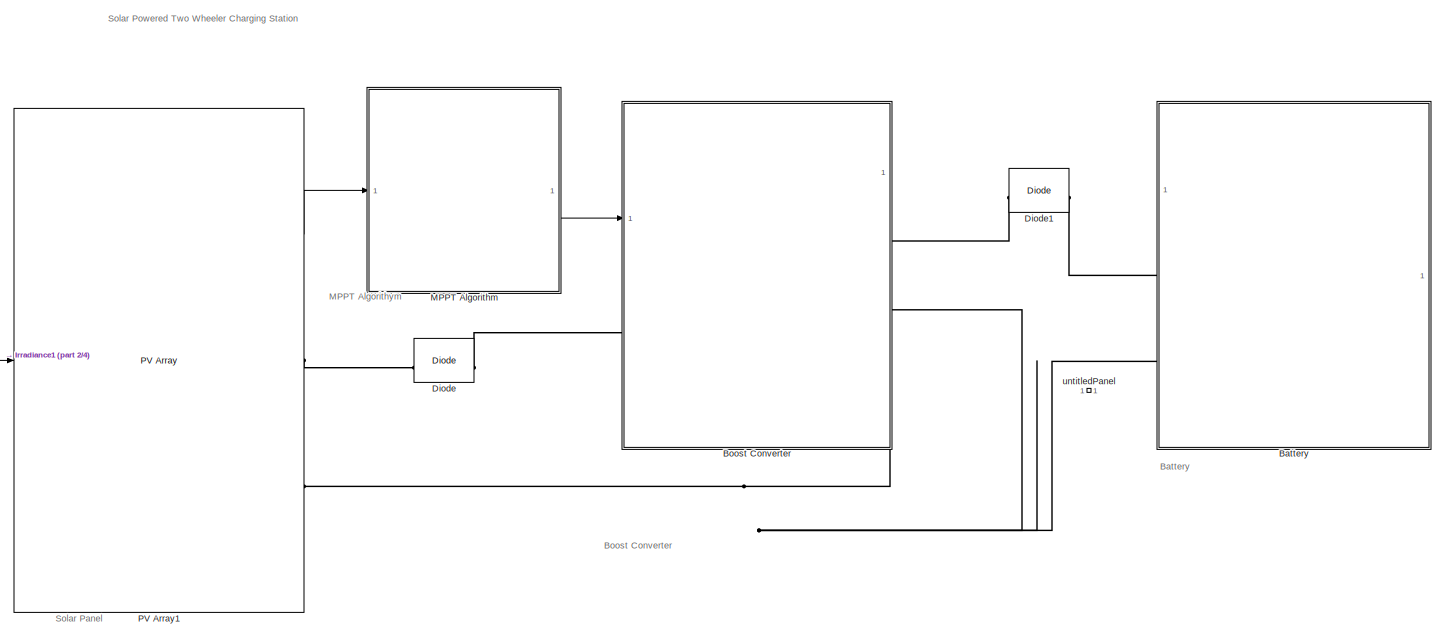
[diagram: root canvas - part 1/4, full width, top band]
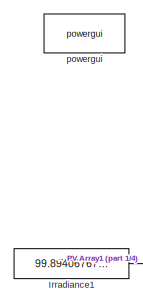
[diagram: root canvas - part 2/4, top left region]
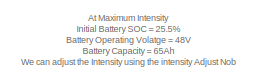
[diagram: root canvas - part 3/4, bottom left region]
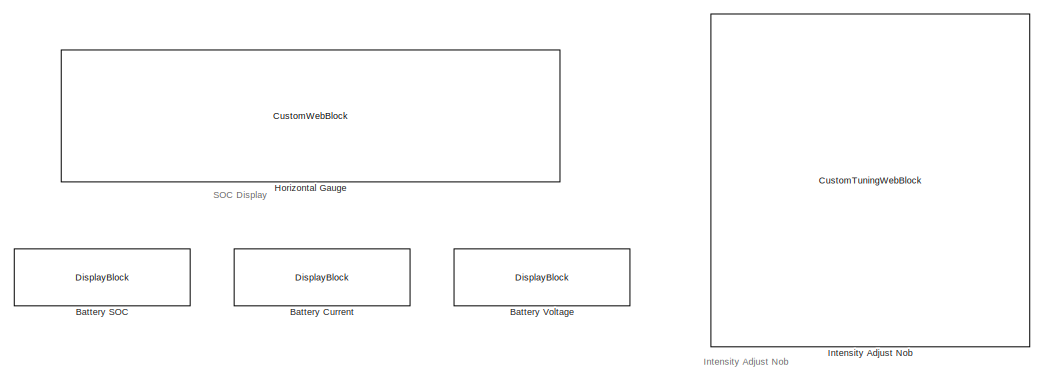
[diagram: root canvas - part 4/4, bottom right region]
MODEL slx_e4b06bc5aaa3
KIND model
CONFIG AbsTol = auto
CONFIG EnableMultiTasking = off
CONFIG FixedStep = auto
CONFIG MaxStep = auto
CONFIG MinStep = auto
CONFIG RelTol = 1e-3
CONFIG SampleTimeConstraint = Unconstrained
CONFIG SolverName = ode23t
CONFIG StartTime = 0.0
CONFIG StopTime = 3600
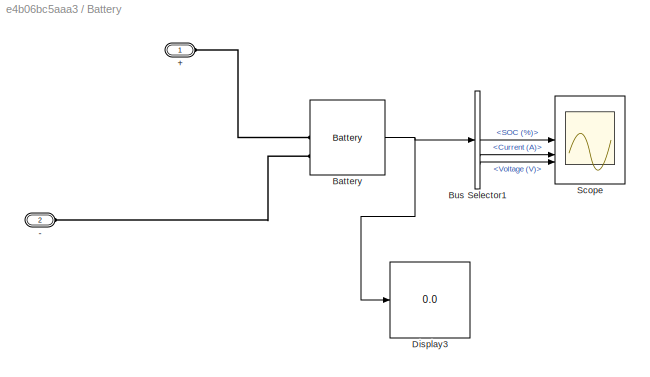
BLOCK [SubSystem] Battery
BLOCK [DisplayBlock] Battery Current
  LabelPosition = Hide
  Transparency = 1
BLOCK [DisplayBlock] Battery SOC
  LabelPosition = Hide
  Transparency = 1
BLOCK [DisplayBlock] Battery Voltage
  LabelPosition = Hide
  Transparency = 1
BLOCK [PMIOPort] Battery/+
  Side = Left
BLOCK [PMIOPort] Battery/-
  Port = 2
  Side = Left
BLOCK [Reference] Battery/Battery  REF=spsBatteryLib/Battery
  LibrarySourceBlock = sps_lib/Sources/Battery
  SourceBlock = spsBatteryLib/Battery
  SourceType = Battery
BLOCK [BusSelector] Battery/Bus Selector1
  OutputSignals = SOC (%),Current (A),Voltage (V)
BLOCK [Display] Battery/Display3
  Decimation = 1
BLOCK [Scope] Battery/Scope
  Floating = off
  NumInputPorts = 3
  ScopeSpecificationString = Simulink.scopes.TimeScopeBlockCfg('CurrentConfiguration', extmgr.ConfigurationSet(extmgr.Configuration('Core','General UI',true),extmgr.Configuration('Core','Source UI',true),extmgr.Configuration('Sources','WiredSimulink',true),extmgr.Configuration('Visuals','Time Domain',true,'SerializedDisplays',{struct('MinYLimReal','24.99661','MaxYLimReal','25.0305','YLabelReal','','MinYLimMag','24.99661','Max...<+2891ch>
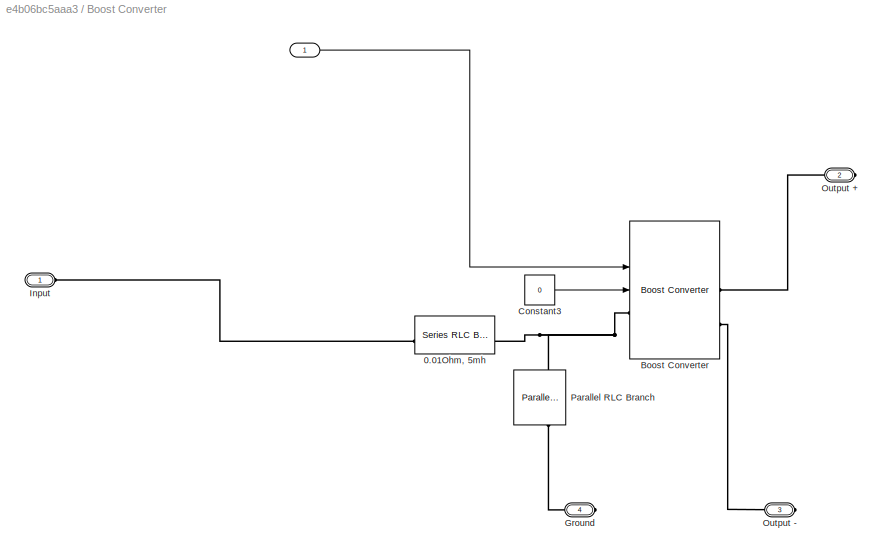
BLOCK [SubSystem] Boost Converter
  PortSchema = {"entries":[{"content":{"sides":[{"content":{"connectorIds":["In1","LConn1"]},"type":"ConnectorPlacement.EquallySpacedRectSide","uuid":"6df60865-aabd-442b-bacd-28d207d40c97"},{"content":{"connectorIds":["RConn1","RConn2"],"side":"RIGHT"},"type":"ConnectorPlacement.EquallySpacedRectSide","uuid":"38fe3c18-4b36-4eab-bb47-575a2be94bce"},{"content":{"side":"TOP"},"type":"ConnectorPlacement.EquallySpace...<+394ch>
BLOCK [Inport] Boost Converter/  
BLOCK [Reference] Boost Converter/0.01Ohm, 5mh  REF=spsSeriesRLCBranchLib/Series RLC Branch
  LibrarySourceBlock = sps_lib/Passives/Series RLC Branch
  SourceBlock = spsSeriesRLCBranchLib/Series RLC Branch
  SourceType = Series RLC Branch
BLOCK [Reference] Boost Converter/Boost Converter  REF=spsBoostConverterLib/Boost Converter
  LibrarySourceBlock = sps_lib/Power Electronics/Boost Converter
  SourceBlock = spsBoostConverterLib/Boost Converter
  SourceType = Boost Converter
BLOCK [Constant] Boost Converter/Constant3
  Value = 0
BLOCK [PMIOPort] Boost Converter/Ground
  Port = 4
  Side = Right
BLOCK [PMIOPort] Boost Converter/Input
  Side = Left
BLOCK [PMIOPort] Boost Converter/Output +
  Port = 2
  Side = Right
BLOCK [PMIOPort] Boost Converter/Output -
  Port = 3
  Side = Right
BLOCK [Reference] Boost Converter/Parallel RLC Branch  REF=spsParallelRLCBranchLib/Parallel RLC Branch
  AttributesFormatString = \n
  LibrarySourceBlock = sps_lib/Passives/Parallel RLC Branch
  NameLocation = left
  SourceBlock = spsParallelRLCBranchLib/Parallel RLC Branch
  SourceType = Parallel RLC Branch
BLOCK [Reference] Diode  REF=spsDiodeLib/Diode
  LibrarySourceBlock = sps_lib/Power Electronics/Diode
  SourceBlock = spsDiodeLib/Diode
  SourceType = Diode
BLOCK [Reference] Diode1  REF=spsDiodeLib/Diode
  LibrarySourceBlock = sps_lib/Power Electronics/Diode
  SourceBlock = spsDiodeLib/Diode
  SourceType = Diode
BLOCK [CustomWebBlock] Horizontal Gauge
  Configuration = {"components":[{"name":"LinearScaleComponent","settings":{"bounds":{"max":100,"min":0,"tickInterval":"auto"},"internalTickHeightScaleFactor":0.5,"labelColor":[255,255,200],"labelFont":{"font":"Arial","fontSize":12},"labelOffset":0.05,"labelTransparency":1,"needleImage":{"size":[21,75],"src":"data:image\/svg+xml;base64,PHN2ZyB4bWxucz0iaHR0cDovL3d3dy53My5vcmcvMjAwMC9zdmciIHhtbG5zOnhsaW5rPSJodHRwOi8v...<+4594ch>
  LabelPosition = Hide
  ShowInitialText = on
BLOCK [CustomTuningWebBlock] Intensity Adjust Nob
  Configuration = {"components":[{"name":"CircularScaleComponent","settings":{"bounds":{"max":100,"min":0,"tickInterval":"auto"},"direction":"cw","flipLimits":0,"innerRadius":0.6636618227670849,"internalTickHeightScaleFactor":1,"labelColor":[255,255,200],"labelFont":{"font":"Arial","fontSize":12},"labelRadius":0.79,"labelTransparency":1,"minorTickHeightScaleFactor":0.2,"needleImage":{"size":[150,150],"src":"data:im...<+43671ch>
  LabelPosition = Hide
  ShowInitialText = on
BLOCK [Constant] Irradiance1
  Value = 99.89406767462799
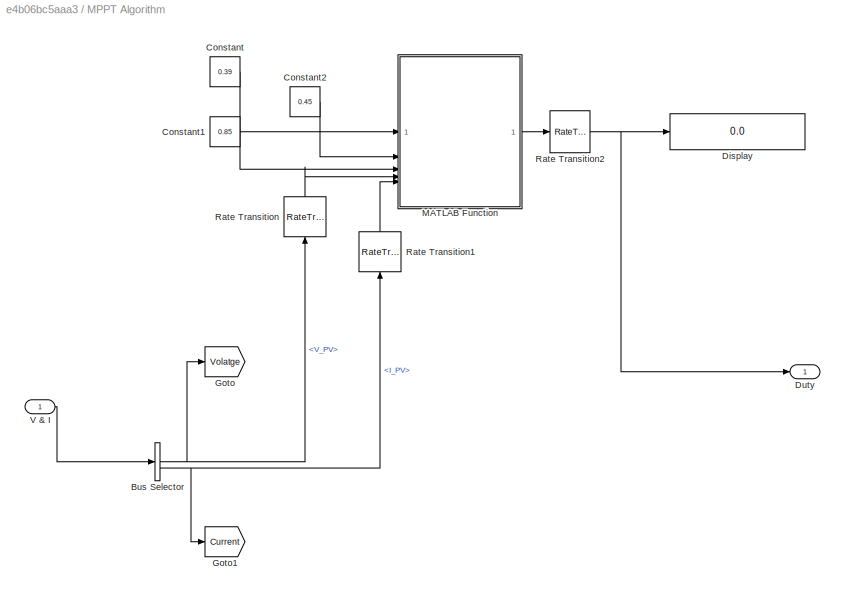
BLOCK [SubSystem] MPPT Algorithm
BLOCK [BusSelector] MPPT Algorithm/Bus Selector
  OutputSignals = V_PV,I_PV
BLOCK [Constant] MPPT Algorithm/Constant
  Value = 0.39
BLOCK [Constant] MPPT Algorithm/Constant1
  Value = 0.85
BLOCK [Constant] MPPT Algorithm/Constant2
  Value = 0.45
BLOCK [Display] MPPT Algorithm/Display
  Decimation = 1
  Format = long
BLOCK [Outport] MPPT Algorithm/Duty
BLOCK [Goto] MPPT Algorithm/Goto
  GotoTag = Volatge
  TagVisibility = global
BLOCK [Goto] MPPT Algorithm/Goto1
  GotoTag = Current
  TagVisibility = global
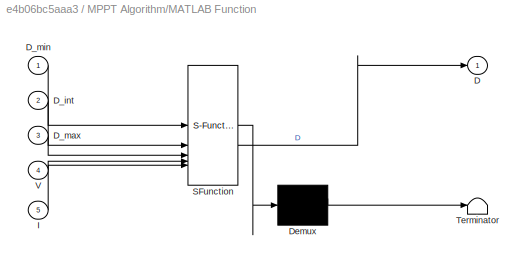
BLOCK [SubSystem] MPPT Algorithm/MATLAB Function
  ErrorFcn = Stateflow.Translate.translate
  PermitHierarchicalResolution = ExplicitOnly
  SFBlockType = MATLAB Function
  TreatAsAtomicUnit = on
BLOCK [Demux] MPPT Algorithm/MATLAB Function/ Demux 
  Outputs = 1
BLOCK [S-Function] MPPT Algorithm/MATLAB Function/ SFunction 
  EnableBusSupport = on
  FunctionName = sf_sfun
  PortCounts = [5 2]
  SFcnIsStateOwnerBlock = off
  SFunctionDeploymentMode = off
  Tag = Stateflow S-Function 2
BLOCK [Terminator] MPPT Algorithm/MATLAB Function/ Terminator 
BLOCK [Outport] MPPT Algorithm/MATLAB Function/D
BLOCK [Inport] MPPT Algorithm/MATLAB Function/D_int
  Port = 2
BLOCK [Inport] MPPT Algorithm/MATLAB Function/D_max
  Port = 3
BLOCK [Inport] MPPT Algorithm/MATLAB Function/D_min
BLOCK [Inport] MPPT Algorithm/MATLAB Function/I
  Port = 5
BLOCK [Inport] MPPT Algorithm/MATLAB Function/V
  Port = 4
BLOCK [RateTransition] MPPT Algorithm/Rate Transition
  NameLocation = right
  OutPortSampleTime = 0.0001
BLOCK [RateTransition] MPPT Algorithm/Rate Transition1
  NameLocation = right
  OutPortSampleTime = 0.0001
BLOCK [RateTransition] MPPT Algorithm/Rate Transition2
  OutPortSampleTime = 5e-5
BLOCK [Inport] MPPT Algorithm/V & I
BLOCK [Reference] PV Array1  REF=spsPVArrayLib/PV Array
  LibrarySourceBlock = sps_lib/Sources/PV Array
  SourceBlock = spsPVArrayLib/PV Array
  SourceType = PV array
BLOCK [Reference] powergui  REF=spspowerguiLib/powergui
  LibrarySourceBlock = sps_lib/powergui
  Priority = 1
  SourceBlock = spspowerguiLib/powergui
  SourceType = PSB option menu block
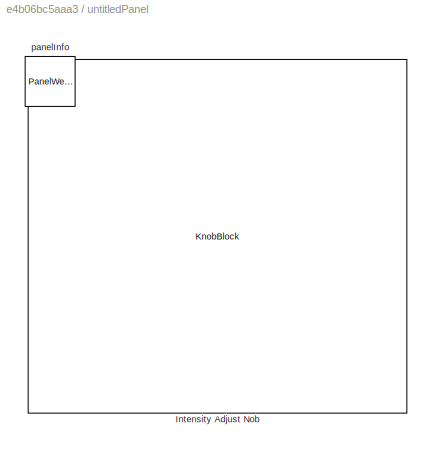
BLOCK [SubSystem] untitledPanel
  IsWebBlockPanel = on
  Tag = HiddenForWebPanel
BLOCK [KnobBlock] untitledPanel/Intensity Adjust Nob
  LabelPosition = Hide
  PanelInfo = {"height":354,"left":18,"panelId":"panelId-075bc4ff-4528-4aae-9883-01d69de20ba9","top":18,"type":"panelChild","version":"2019b","width":379,"zIndex":1499998}
  ScaleMax = 1000
  Tag = HiddenForWebPanel
BLOCK [PanelWebBlock] untitledPanel/panelInfo
  PanelInfo = {"compacted":true,"height":394,"isActiveTab":true,"left":847,"name":"Panel","panelId":"panelId-075bc4ff-4528-4aae-9883-01d69de20ba9","popoutData":{"height":656,"left":1233,"maximized":false,"top":132,"width":303},"popoutMode":"windowHidden","tabIndex":0,"tabbedSetId":"tabbedSet1264567104","top":100,"type":"panel","version":"2019b","visible":true,"width":419,"zIndex":1500002}
  PanelSnapshot = iVBORw0KGgoAAAANSUhEUgAAAV8AAAFICAYAAAD3Zv2iAAAACXBIWXMAABJ0AAASdAHeZh94AAAgAElEQVR4nOydd3gU5fbHz8z2bLI9yab3npBCCL1FmjSpF0WKWLiIF0XxpyJXRVQu164gIoiIgLQA0nsTKQnpvSek991Ntrf5/RGTm91sC2m7ZD7Pkwcymdl5k5357jvnPed7kBoMSwYcHBwcnAEFHewB4ODg4AxFcPHFwcHBGQRw8cXBwcEZBHDxxcHBwRkEcPHFwcHBGQRw8cXBwcEZBHDxxcHBwRkEcPHFwcHBGQRw8cXBwcEZBHDxxcHBwRkEcPHFwcHBGQRw8cXBwcEZBHDxxcHBwRkEcPHFwcHBGQRw8cXBwcEZBHDxxcHBwRkEcPHF...<+51636ch>
  Tag = HiddenForWebPanel
ANNOTATION (root): Boost Converter
ANNOTATION (root): Solar Panel
ANNOTATION (root): Solar Powered Two Wheeler Charging Station
ANNOTATION (root): Battery
ANNOTATION (root): Intensity Adjust Nob
ANNOTATION (root): MPPT Algorithym
ANNOTATION (root): At Maximum Intensity Initial Battery SOC = 25.5% Battery Operating Volatge = 48V Battery Capacity = 65Ah We can adjust the Intensity using the intensity Adjust Nob
ANNOTATION (root): SOC Display
NET Battery/Battery:1 -> Battery/Bus Selector1:1, Battery/Display3:1
LINE Battery/Bus Selector1:1 -> Battery/Scope:1
LINE Battery/Bus Selector1:2 -> Battery/Scope:2
LINE Battery/Bus Selector1:3 -> Battery/Scope:3
LINE Boost Converter/  :1 -> Boost Converter/Boost Converter:1
LINE Boost Converter/Constant3:1 -> Boost Converter/Boost Converter:2
LINE Irradiance1:1 -> PV Array1:1
NET MPPT Algorithm/Bus Selector:1 -> MPPT Algorithm/Goto:1, MPPT Algorithm/Rate Transition:1
NET MPPT Algorithm/Bus Selector:2 -> MPPT Algorithm/Goto1:1, MPPT Algorithm/Rate Transition1:1
LINE MPPT Algorithm/Constant1:1 -> MPPT Algorithm/MATLAB Function:3
LINE MPPT Algorithm/Constant2:1 -> MPPT Algorithm/MATLAB Function:2
LINE MPPT Algorithm/Constant:1 -> MPPT Algorithm/MATLAB Function:1
LINE MPPT Algorithm/MATLAB Function:1 -> MPPT Algorithm/Rate Transition2:1
LINE MPPT Algorithm/Rate Transition1:1 -> MPPT Algorithm/MATLAB Function:5
NET MPPT Algorithm/Rate Transition2:1 -> MPPT Algorithm/Display:1, MPPT Algorithm/Duty:1
LINE MPPT Algorithm/Rate Transition:1 -> MPPT Algorithm/MATLAB Function:4
LINE MPPT Algorithm/V & I:1 -> MPPT Algorithm/Bus Selector:1
LINE MPPT Algorithm:1 -> Boost Converter:1
LINE PV Array1:1 -> MPPT Algorithm:1
PLINE Battery/+:RConn1 -- Battery/Battery:LConn1
PLINE Battery/-:RConn1 -- Battery/Battery:LConn2
PLINE Battery:LConn1 -- Diode1:RConn1
PNET net1: Battery:LConn2 -- Boost Converter:RConn2 -- Boost Converter:RConn3 -- PV Array1:RConn2
PLINE Boost Converter/0.01Ohm, 5mh:LConn1 -- Boost Converter/Input:RConn1
PNET net2: Boost Converter/0.01Ohm, 5mh:RConn1 -- Boost Converter/Boost Converter:LConn1 -- Boost Converter/Parallel RLC Branch:LConn1
PLINE Boost Converter/Boost Converter:RConn1 -- Boost Converter/Output +:RConn1
PLINE Boost Converter/Boost Converter:RConn2 -- Boost Converter/Output -:RConn1
PLINE Boost Converter/Ground:RConn1 -- Boost Converter/Parallel RLC Branch:RConn1
PLINE Boost Converter:LConn1 -- Diode:RConn1
PLINE Boost Converter:RConn1 -- Diode1:LConn1
PLINE Diode:LConn1 -- PV Array1:RConn1
note: NET lines group one-source signal fan-out (src -> all destinations, sorted); 1:1 wires keep LINE; PNET lines group multi-terminal physical nets as a canonical sorted terminal list (undirected conserving connections); 2-terminal nets keep the pairwise PLINE form
CHART MPPT Algorithm/MATLAB Function states=1 transitions=1
  STATE_LABEL 'eML_blk_kernel()'
  STATE_LABEL "SCRIPT:\nfunction D = fcn(D_min, D_int, D_max, V, I)\n\nD_const = 0.0015;\n\npersistent  old_voltage old_power old_duty;\n\ndataType = 'double';\n\nif isempty(old_voltage)\n    old_power = 0;\n    old_voltage = 0;\n    old_duty = D_int;\nend\n\nUpdated_Voltage = old_voltage;\n\n% Find power\nN_power = V * I;\n\nif (N_power ~= old_power)\n\n    % Find Max power and volatge\n    if (N_power > old_power)\n        old_power ...<+704ch>"
CHART  states=0 transitions=0
